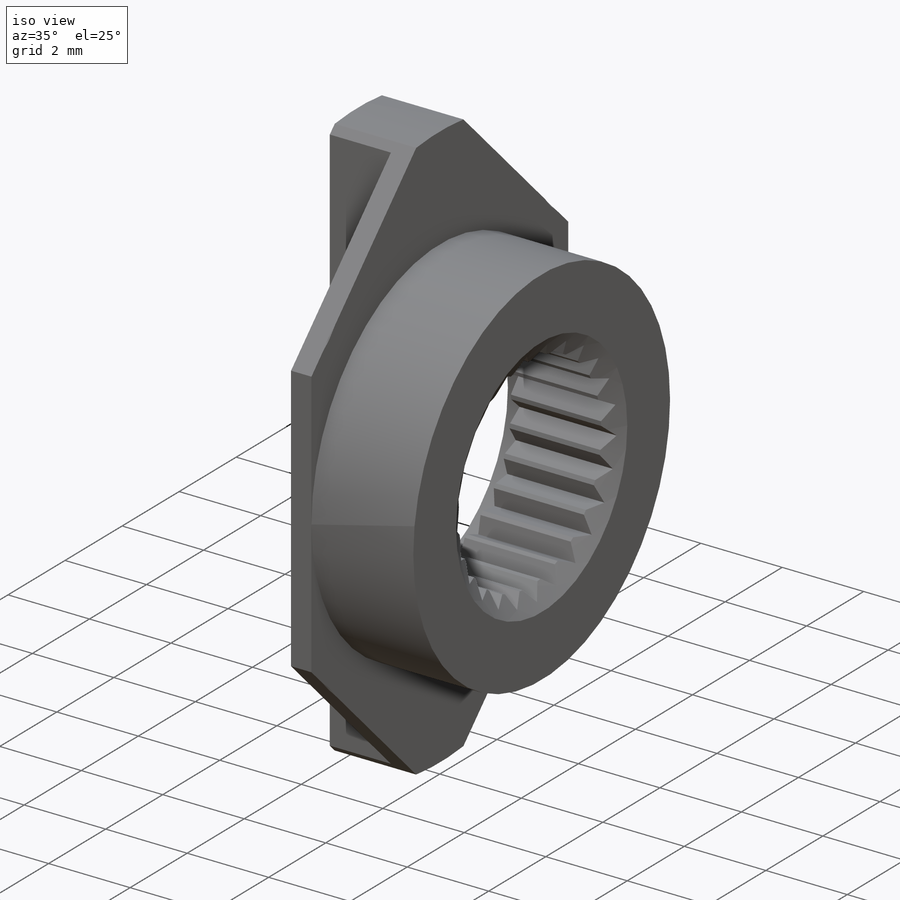
[diagram: iso view]
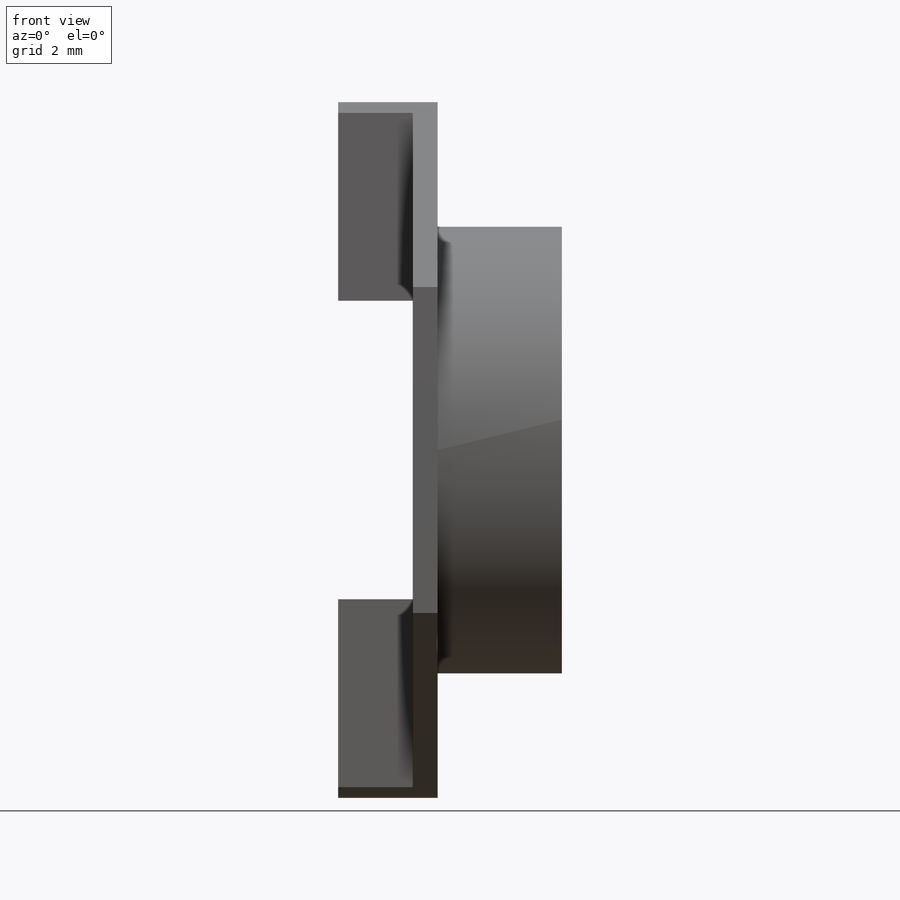
[diagram: front view]
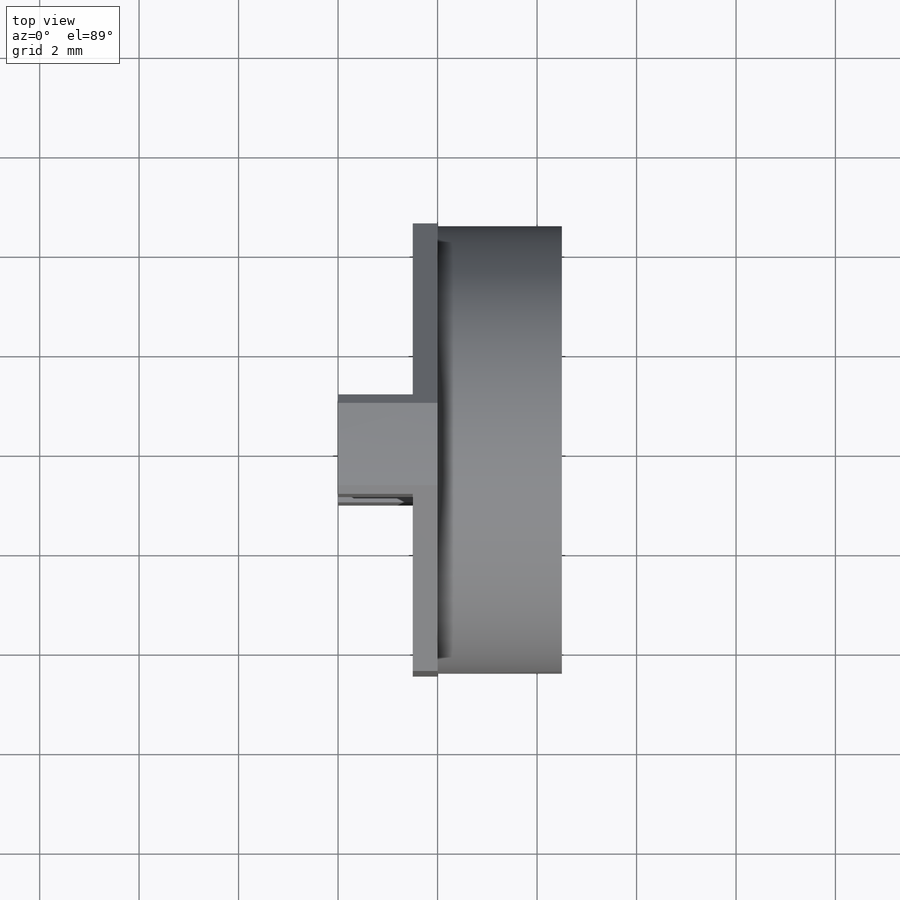
[diagram: top view]
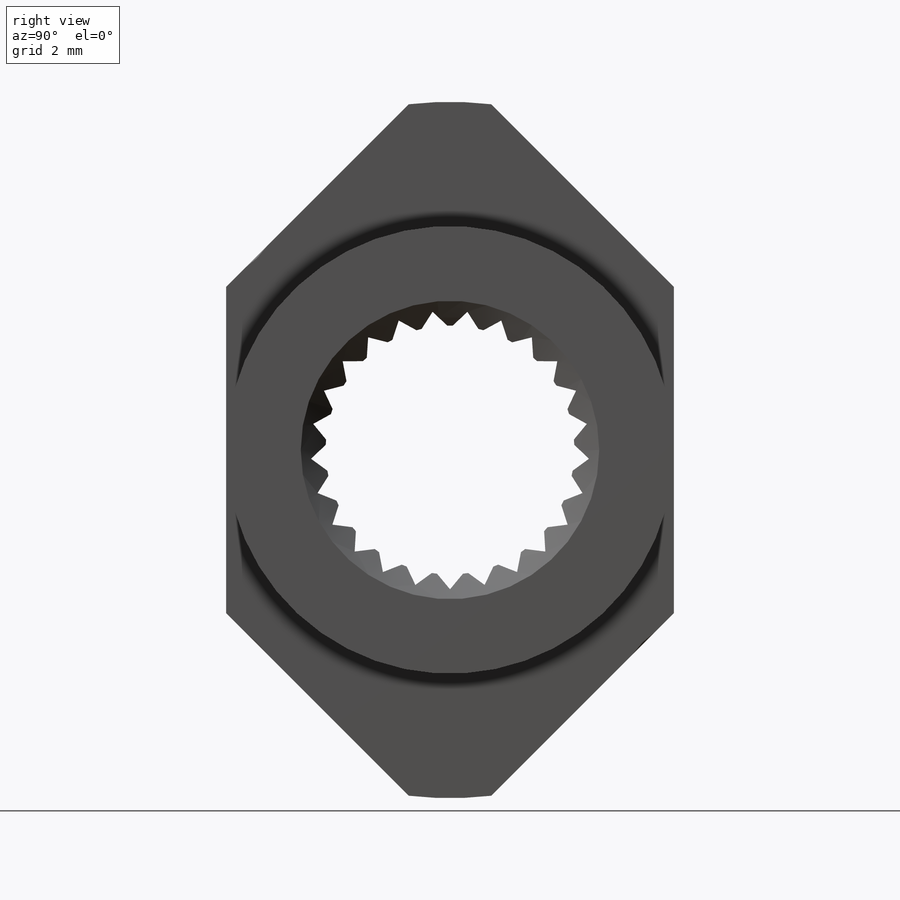
[diagram: right view]
SOLIDWORKS PART (.sldprt)
format: sldprt  version: not decoded by parser v0  size: 428,032 bytes
history: native  units: mm
features: sketch x8, cut_revolve x4, plane x3, material x1, revolve x1, chamfer x1, cut_extrude x1, hole x1 (+13 scaffold rows collapsed)
feature tree (33):
  scaffold x13  (default folders/planes/origin — collapsed)
  material  "Материал <не указан>"
  plane  "Спереди"
  plane  "Сверху"
  plane  "Справа"
  sketch  "Эскиз1"  dims[c1.D1=20.0mm c1.D2=3.0mm c1.D3=5.0mm c1.D4=9.0mm c1.D5=4.5mm c1.D6=2.0mm c1.D7=3.5mm c2.D3=5.0mm c2.D8=6.2mm c2.D9=1.0mm]
  revolve  "Повернуть1"  Angle=360deg
  chamfer  "Фаска1"  Distance=0.5mm Angle=30deg
  sketch  "Эскиз3"  dims[c1.D4=4.9mm c1.D5=5.6mm c1.D1=~2.427105mm c2.D1=14.4deg c2.D2=~2.427105mm c3.D2=7.2deg c3.D3=25.0]
  cut_extrude  "Вырез-Вытянуть1"  [1 undecoded]
  hole  "Отверстие обработанное метчиком M3x0.51"  [1 undecoded]
  sketch  "Эскиз5"  dims[c1.D4=3.0mm c1.D1=10.0mm c1.D2=10.0mm c1.D3=5.0mm c2.D4=5.0mm]
  sketch  "Эскиз6"  dims[hole-wizard template sketch: 46 standard entries collapsed; hole parameters kept: c15.Диаметр резьбы=2.5mm c15.Глубина проходного сверла=2.0mm c15.Диаметр передней зенковки=3.2mm c15.D4=~3.666174mm c15.Угол передней зенковки=110.0deg c15.Диаметр задней зенковки=3.2mm c15.D6=~9.919017mm c15.Угол задней зенковки=110.0deg]
  sketch  "Эскиз7"  dims[D1=14.0mm]
  cut_revolve  "Вырез-Повернуть1"  Angle=360deg
  sketch  "Эскиз8"  dims[c1.D1=3.0mm c1.D3=3.0mm c2.D1=5.5mm c2.D2=9.0mm c2.D3=5.5mm]
  cut_revolve  "Вырез-Вытянуть2"  [1 undecoded]
  sketch  "Эскиз9"  dims[D1=3.0mm D2=6.0mm D3=1.5mm]
  cut_revolve  "Вырез-Вытянуть3"  [1 undecoded]
  sketch  "Эскиз10"  dims[D1=2.0mm]
  cut_revolve  "Вырез-Вытянуть4"  [1 undecoded]
decode coverage: 11 of 16 modeling features carry decoded parameters
note: ~ marks probable driven/reference dimensions
note: 5 parameter values undecoded
summary: no parameter record found for 5 features
note: suppression state not decoded; provenance and decode notes live in map.json
